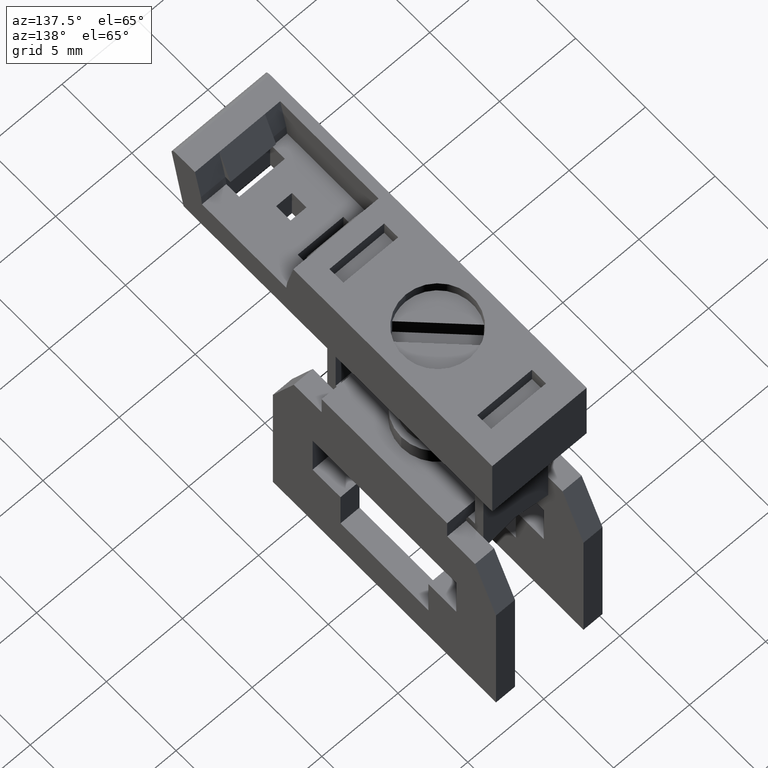
[diagram: clean part render]
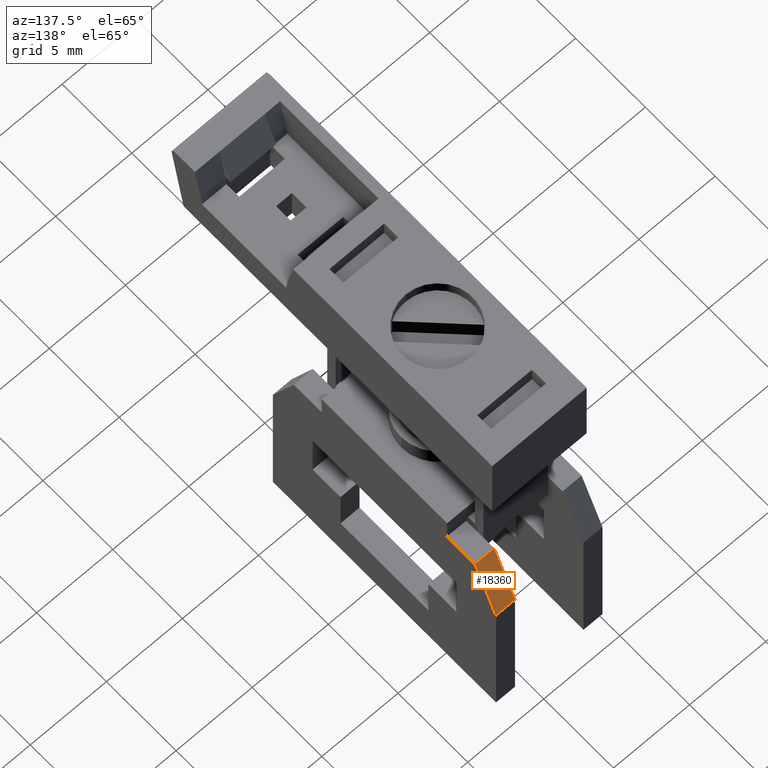
[diagram: same view with one face highlighted and labeled with its STEP entity id]
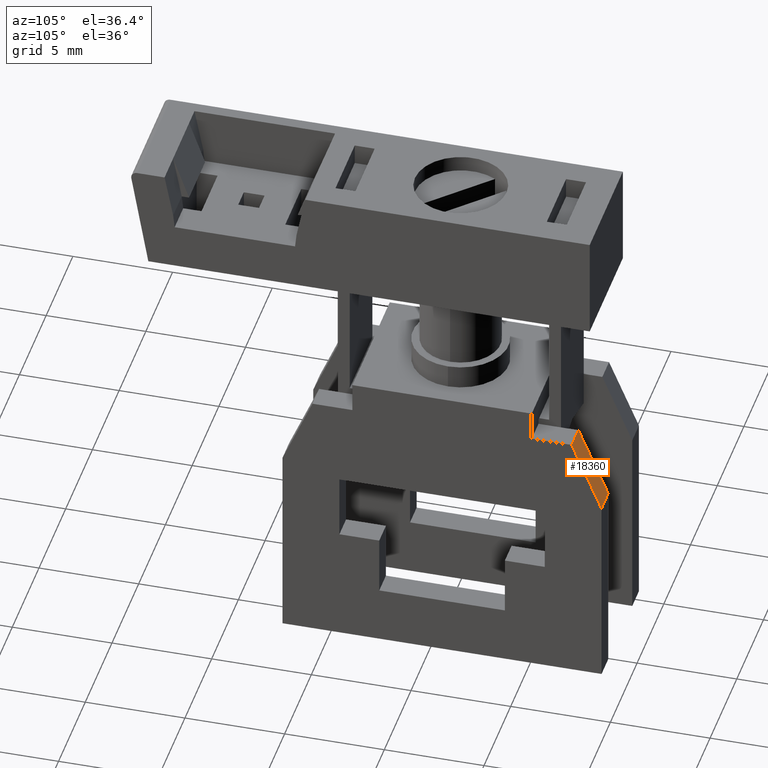
[diagram: same view with one face highlighted and labeled with its STEP entity id]
A machine part, auxiliary view. The second image highlights one B-rep face of the part: STEP entity #18360.
A second angle (auxiliary view) of the same face is appended — the face is thin or edge-on in the first view.
In plain terms, the highlighted planar face has unit normal (0, -0.9205, -0.3907).
Its self-contained STEP definition (entity closure, byte-faithful):
#17780=CARTESIAN_POINT('',(-1.25,18.,1.5));
#17790=VERTEX_POINT('',#17780);
#17820=CARTESIAN_POINT('',(-7.7000024,18.,1.5));
#17830=DIRECTION('',(1.,0.,0.));
#17840=VECTOR('',#17830,1.);
#17850=LINE('',#17820,#17840);
#17860=CARTESIAN_POINT('',(0.,18.,1.5));
#17870=VERTEX_POINT('',#17860);
#17880=EDGE_CURVE('',#17790,#17870,#17850,.T.);
#18060=CARTESIAN_POINT('',(-7.7000024,14.4662214512644,
3.5527136788005E-15));
#18070=DIRECTION('',(0.,-0.390731128489277,0.920504853452439));
#18080=DIRECTION('',(0.,0.920504853452439,0.390731128489277));
#18090=AXIS2_PLACEMENT_3D('',#18060,#18070,#18080);
#18100=PLANE('',#18090);
#18110=CARTESIAN_POINT('',(0.,14.4662214512644,0.));
#18120=DIRECTION('',(1.,0.,0.));
#18130=VECTOR('',#18120,1.);
#18140=LINE('',#18110,#18130);
#18150=CARTESIAN_POINT('',(-1.25,14.4662214512644,0.));
#18160=VERTEX_POINT('',#18150);
#18170=CARTESIAN_POINT('',(0.,14.4662214512644,0.));
#18180=VERTEX_POINT('',#18170);
#18190=EDGE_CURVE('',#18160,#18180,#18140,.T.);
#18200=ORIENTED_EDGE('',*,*,#18190,.F.);
#18210=CARTESIAN_POINT('',(0.,4.5,-4.23041001882971));
#18220=DIRECTION('',(0.,-0.920504853452439,-0.390731128489277));
#18230=VECTOR('',#18220,1.);
#18240=LINE('',#18210,#18230);
#18250=EDGE_CURVE('',#17870,#18180,#18240,.T.);
#18260=ORIENTED_EDGE('',*,*,#18250,.T.);
#18270=ORIENTED_EDGE('',*,*,#17880,.T.);
#18280=CARTESIAN_POINT('',(-1.25,4.5,-4.23041001882971));
#18290=DIRECTION('',(0.,0.920504853452439,0.390731128489277));
#18300=VECTOR('',#18290,1.);
#18310=LINE('',#18280,#18300);
#18320=EDGE_CURVE('',#18160,#17790,#18310,.T.);
#18330=ORIENTED_EDGE('',*,*,#18320,.T.);
#18340=EDGE_LOOP('',(#18330,#18270,#18260,#18200));
#18350=FACE_OUTER_BOUND('',#18340,.T.);
#18360=ADVANCED_FACE('',(#18350),#18100,.F.);